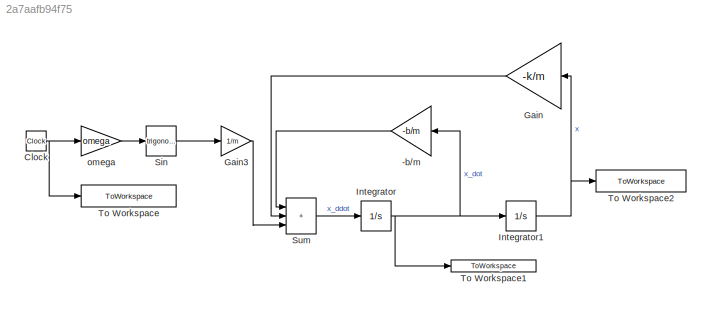
MODEL slx_2a7aafb94f75
KIND model
CONFIG AbsTol = auto
CONFIG EnableMultiTasking = off
CONFIG FixedStep = auto
CONFIG MaxStep = auto
CONFIG MinStep = auto
CONFIG RelTol = 1e-3
CONFIG SampleTimeConstraint = Unconstrained
CONFIG SolverName = VariableStepAuto
CONFIG StartTime = 0.0
CONFIG StopTime = 10.0
BLOCK [Gain] -b//m
  Gain = -b/m
  NameLocation = top
BLOCK [Clock] Clock
BLOCK [Gain] Gain
  Gain = -k/m
  NameLocation = top
BLOCK [Gain] Gain3
  Gain = 1/m
BLOCK [Integrator] Integrator
  InitialCondition = v0
BLOCK [Integrator] Integrator1
  InitialCondition = x0
BLOCK [Trigonometry] Sin
BLOCK [Sum] Sum
  IconShape = rectangular
  Inputs = +++
BLOCK [ToWorkspace] To Workspace
  FixptAsFi = on
  MaxDataPoints = inf
  SampleTime = -1
  SaveFormat = Timeseries
  VariableName = time
BLOCK [ToWorkspace] To Workspace1
  FixptAsFi = on
  MaxDataPoints = inf
  SampleTime = -1
  SaveFormat = Timeseries
  VariableName = x_dot
BLOCK [ToWorkspace] To Workspace2
  FixptAsFi = on
  MaxDataPoints = inf
  SampleTime = -1
  SaveFormat = Timeseries
  VariableName = x
BLOCK [Gain] omega
  Gain = omega
LINE -b//m:1 -> Sum:1
NET Clock:1 -> To Workspace:1, omega:1
LINE Gain3:1 -> Sum:3
LINE Gain:1 -> Sum:2
NET Integrator1:1 -> Gain:1, To Workspace2:1
NET Integrator:1 -> -b//m:1, Integrator1:1, To Workspace1:1
LINE Sin:1 -> Gain3:1
LINE Sum:1 -> Integrator:1
LINE omega:1 -> Sin:1
note: NET lines group one-source signal fan-out (src -> all destinations, sorted); 1:1 wires keep LINE
